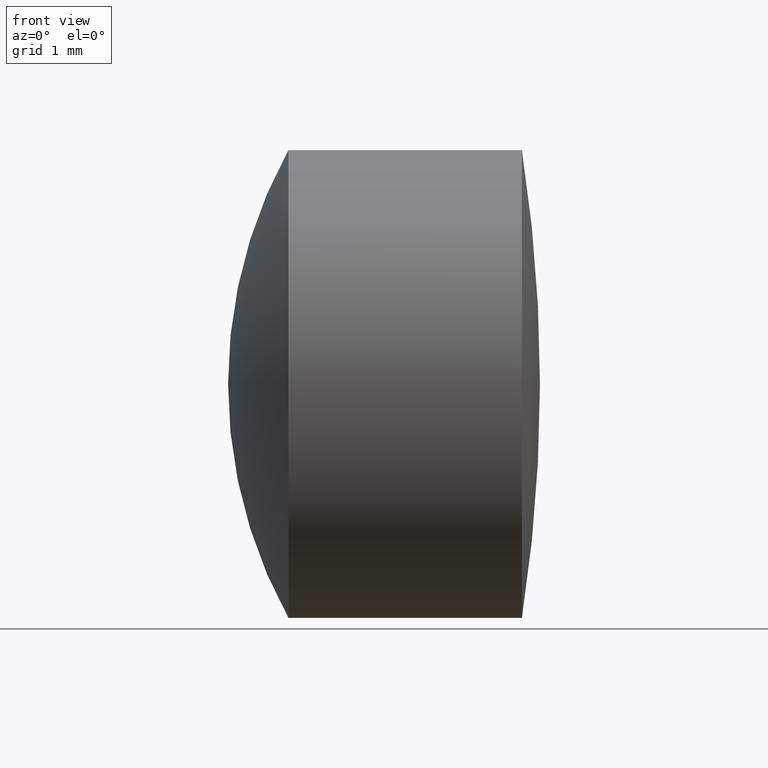
[diagram: clean part render]
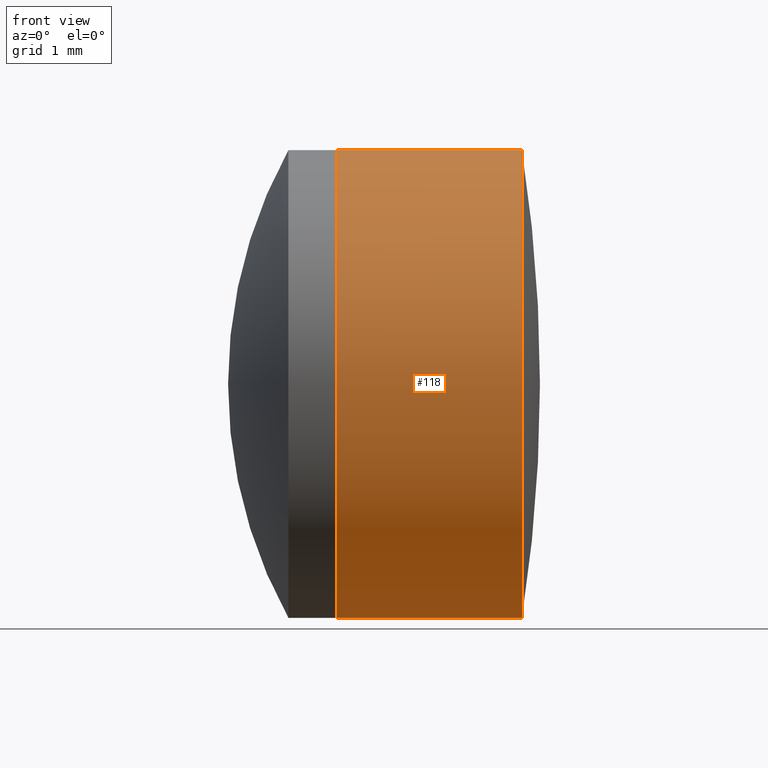
[diagram: same view with one face highlighted and labeled with its STEP entity id]
A machine part, front view. The second image highlights one B-rep face of the part: STEP entity #118.
In plain terms, the highlighted cylindrical surface (partial cylindrical patch) has radius 3 mm, axis along (-1, -0, -0).
Its self-contained STEP definition (entity closure, byte-faithful):
#2 = CARTESIAN_POINT ( 'NONE',  ( 2.881554070428458600, 0.0000000000000000000, 0.0000000000000000000 ) ) ;
#9 = ORIENTED_EDGE ( 'NONE', *, *, #315, .T. ) ;
#35 = CARTESIAN_POINT ( 'NONE',  ( 5.263482388303502000, 0.0000000000000000000, 0.0000000000000000000 ) ) ;
#46 = CIRCLE ( 'NONE', #335, 2.999999999999997800 ) ;
#59 = LINE ( 'NONE', #161, #288 ) ;
#63 = VECTOR ( 'NONE', #216, 1000.000000000000000 ) ;
#72 = DIRECTION ( 'NONE',  ( 0.0000000000000000000, 0.0000000000000000000, 1.000000000000000000 ) ) ;
#80 = EDGE_CURVE ( 'NONE', #131, #206, #59, .T. ) ;
#81 = AXIS2_PLACEMENT_3D ( 'NONE', #318, #198, #72 ) ;
#83 = FACE_OUTER_BOUND ( 'NONE', #213, .T. ) ;
#112 = AXIS2_PLACEMENT_3D ( 'NONE', #2, #343, #166 ) ;
#118 = ADVANCED_FACE ( 'NONE', ( #83 ), #346, .T. ) ;
#131 = VERTEX_POINT ( 'NONE', #262 ) ;
#142 = CARTESIAN_POINT ( 'NONE',  ( 2.881554070428458600, 0.0000000000000000000, 2.999999999999998200 ) ) ;
#161 = CARTESIAN_POINT ( 'NONE',  ( -0.5519199926577972300, 3.673940397442057900E-016, -2.999999999999998200 ) ) ;
#166 = DIRECTION ( 'NONE',  ( 0.0000000000000000000, 0.0000000000000000000, 1.000000000000000000 ) ) ;
#179 = EDGE_CURVE ( 'NONE', #206, #308, #230, .T. ) ;
#198 = DIRECTION ( 'NONE',  ( -1.000000000000000000, -0.0000000000000000000, -0.0000000000000000000 ) ) ;
#200 = VERTEX_POINT ( 'NONE', #322 ) ;
#206 = VERTEX_POINT ( 'NONE', #347 ) ;
#208 = CARTESIAN_POINT ( 'NONE',  ( -0.5519199926577972300, 0.0000000000000000000, 2.999999999999998200 ) ) ;
#213 = EDGE_LOOP ( 'NONE', ( #336, #9, #327, #284 ) ) ;
#216 = DIRECTION ( 'NONE',  ( -1.000000000000000000, -0.0000000000000000000, -0.0000000000000000000 ) ) ;
#230 = CIRCLE ( 'NONE', #112, 2.999999999999998700 ) ;
#238 = DIRECTION ( 'NONE',  ( -1.000000000000000000, -0.0000000000000000000, -0.0000000000000000000 ) ) ;
#254 = LINE ( 'NONE', #208, #63 ) ;
#262 = CARTESIAN_POINT ( 'NONE',  ( 5.263482388303502000, 3.673940397442057400E-016, -2.999999999999997800 ) ) ;
#279 = EDGE_CURVE ( 'NONE', #200, #308, #254, .T. ) ;
#284 = ORIENTED_EDGE ( 'NONE', *, *, #179, .F. ) ;
#288 = VECTOR ( 'NONE', #238, 1000.000000000000000 ) ;
#294 = DIRECTION ( 'NONE',  ( 0.0000000000000000000, 0.0000000000000000000, 1.000000000000000000 ) ) ;
#296 = DIRECTION ( 'NONE',  ( -1.000000000000000000, -0.0000000000000000000, -0.0000000000000000000 ) ) ;
#308 = VERTEX_POINT ( 'NONE', #142 ) ;
#315 = EDGE_CURVE ( 'NONE', #131, #200, #46, .T. ) ;
#318 = CARTESIAN_POINT ( 'NONE',  ( -0.5519199926577972300, 0.0000000000000000000, 0.0000000000000000000 ) ) ;
#322 = CARTESIAN_POINT ( 'NONE',  ( 5.263482388303502000, 0.0000000000000000000, 2.999999999999997800 ) ) ;
#327 = ORIENTED_EDGE ( 'NONE', *, *, #279, .T. ) ;
#335 = AXIS2_PLACEMENT_3D ( 'NONE', #35, #296, #294 ) ;
#336 = ORIENTED_EDGE ( 'NONE', *, *, #80, .F. ) ;
#343 = DIRECTION ( 'NONE',  ( -1.000000000000000000, -0.0000000000000000000, -0.0000000000000000000 ) ) ;
#346 = CYLINDRICAL_SURFACE ( 'NONE', #81, 2.999999999999998200 ) ;
#347 = CARTESIAN_POINT ( 'NONE',  ( 2.881554070428458600, 3.673940397442058400E-016, -2.999999999999998200 ) ) ;